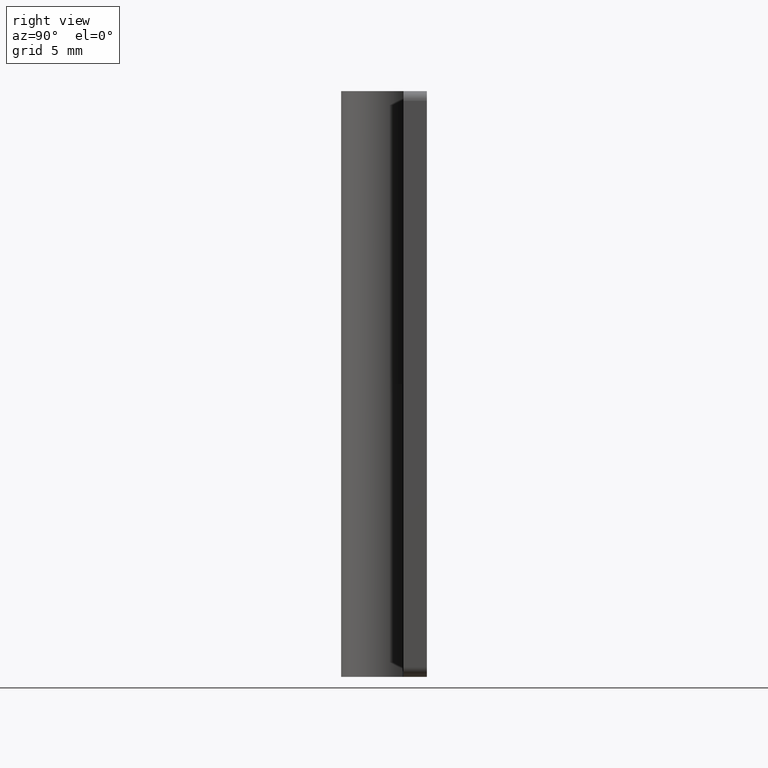
[diagram: clean part render]
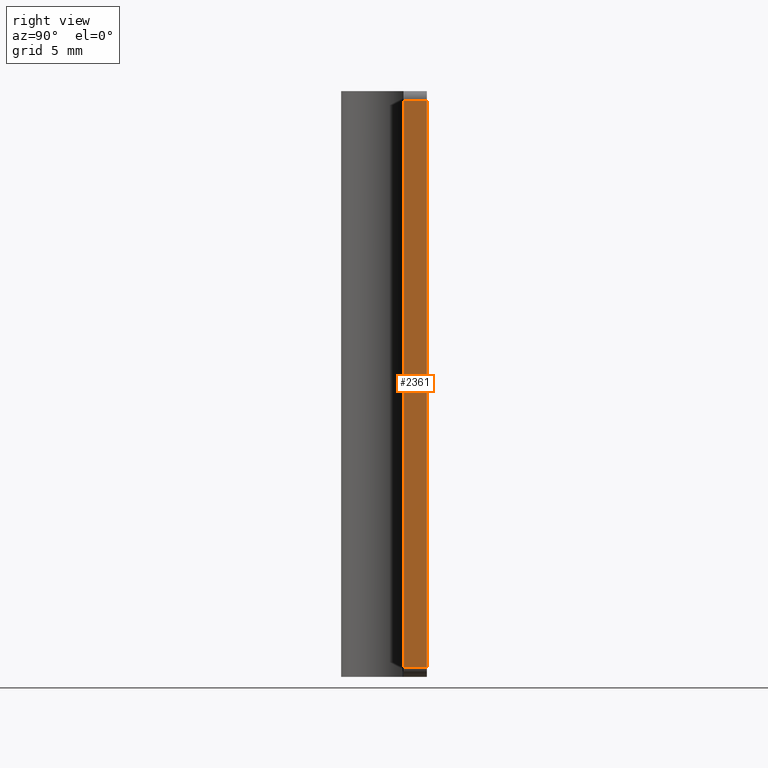
[diagram: same view with one face highlighted and labeled with its STEP entity id]
A machine part, right view. The second image highlights one B-rep face of the part: STEP entity #2361.
In plain terms, the highlighted face is a freeform B-spline surface patch.
Its self-contained STEP definition (entity closure, byte-faithful):
#2005=CARTESIAN_POINT('',(11.0,1.0,29.500000000000000));
#2006=VERTEX_POINT('',#2005);
#2022=CARTESIAN_POINT('',(11.0,2.200000999999950,29.500000000000000));
#2023=VERTEX_POINT('',#2022);
#2024=CARTESIAN_POINT('',(11.0,2.200000999999950,29.500000000000000));
#2025=CARTESIAN_POINT('',(11.0,1.0,29.500000000000000));
#2026=QUASI_UNIFORM_CURVE('',1,(#2024,#2025),.UNSPECIFIED.,.F.,.U.);
#2027=EDGE_CURVE('',#2023,#2006,#2026,.T.);
#2068=CARTESIAN_POINT('',(11.0,1.0,0.500000000000014));
#2069=VERTEX_POINT('',#2068);
#2090=CARTESIAN_POINT('',(11.0,2.200000999999950,0.500000000000014));
#2091=VERTEX_POINT('',#2090);
#2105=CARTESIAN_POINT('',(11.0,2.200000999999950,0.500000000000014));
#2106=CARTESIAN_POINT('',(11.0,1.0,0.500000000000014));
#2107=QUASI_UNIFORM_CURVE('',1,(#2105,#2106),.UNSPECIFIED.,.F.,.U.);
#2108=EDGE_CURVE('',#2091,#2069,#2107,.T.);
#2342=CARTESIAN_POINT('',(11.0,0.940059952375837,30.948549943792369));
#2343=CARTESIAN_POINT('',(11.0,0.940059952375837,-0.948550721632972));
#2344=CARTESIAN_POINT('',(11.0,2.259941079810648,30.948549943792369));
#2345=CARTESIAN_POINT('',(11.0,2.259941079810648,-0.948550721632972));
#2346=B_SPLINE_SURFACE_WITH_KNOTS('',1,1,((#2342,#2344),(#2343,#2345)),.UNSPECIFIED.,.F.,.F.,.U.,(2,2),(2,2),(0.0,31.897100665425349),(0.041708334948495,0.958291687403247),.UNSPECIFIED.);
#2347=CARTESIAN_POINT('',(11.0,2.200000999999950,0.500000000000014));
#2348=CARTESIAN_POINT('',(11.0,2.200000999999950,29.500000000000000));
#2349=QUASI_UNIFORM_CURVE('',1,(#2347,#2348),.UNSPECIFIED.,.F.,.U.);
#2350=EDGE_CURVE('',#2091,#2023,#2349,.T.);
#2351=ORIENTED_EDGE('',*,*,#2350,.T.);
#2352=ORIENTED_EDGE('',*,*,#2027,.T.);
#2353=CARTESIAN_POINT('',(11.0,1.0,0.500000000000014));
#2354=CARTESIAN_POINT('',(11.0,1.0,29.500000000000000));
#2355=QUASI_UNIFORM_CURVE('',1,(#2353,#2354),.UNSPECIFIED.,.F.,.U.);
#2356=EDGE_CURVE('',#2069,#2006,#2355,.T.);
#2357=ORIENTED_EDGE('',*,*,#2356,.F.);
#2358=ORIENTED_EDGE('',*,*,#2108,.F.);
#2359=EDGE_LOOP('',(#2351,#2352,#2357,#2358));
#2360=FACE_OUTER_BOUND('',#2359,.T.);
#2361=ADVANCED_FACE('',(#2360),#2346,.T.);